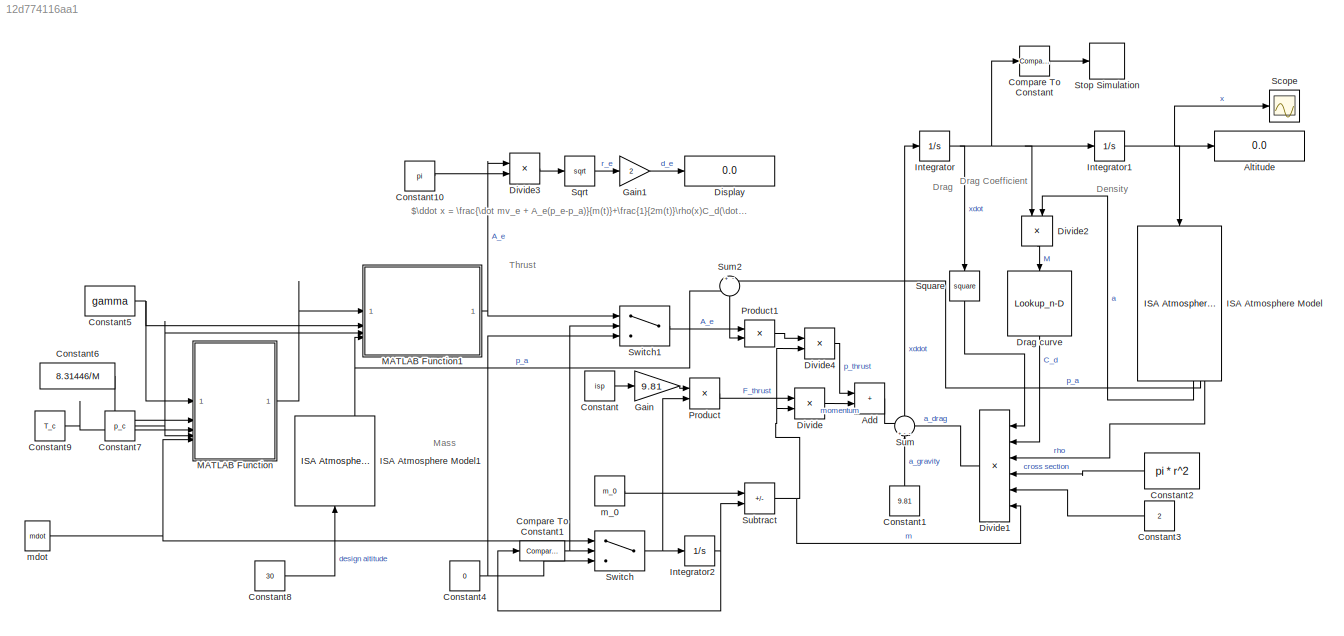
MODEL slx_12d774116aa1
KIND model
CONFIG AbsTol = auto
CONFIG EnableMultiTasking = off
CONFIG FixedStep = auto
CONFIG MaxStep = auto
CONFIG MinStep = auto
CONFIG RelTol = 1e-3
CONFIG SampleTimeConstraint = Unconstrained
CONFIG SolverName = VariableStepAuto
CONFIG StartTime = 0.0
CONFIG StopTime = 50
BLOCK [Sum] Add
  IconShape = rectangular
BLOCK [Display] Altitude
  Decimation = 1
BLOCK [Reference] Compare To Constant  REF=simulink/Logic and Bit
Operations/Compare
To Constant
  SourceBlock = simulink/Logic and Bit\nOperations/Compare\nTo Constant
  SourceType = Compare To Constant
BLOCK [Reference] Compare To Constant1  REF=simulink/Logic and Bit
Operations/Compare
To Constant
  SourceBlock = simulink/Logic and Bit\nOperations/Compare\nTo Constant
  SourceType = Compare To Constant
BLOCK [Constant] Constant
  Value = isp
BLOCK [Constant] Constant1
  NameLocation = right
  Value = 9.81
BLOCK [Constant] Constant10
  Value = pi
BLOCK [Constant] Constant2
  NameLocation = top
  Value = pi * r^2
BLOCK [Constant] Constant3
  NameLocation = top
  Value = 2
BLOCK [Constant] Constant4
  Value = 0
BLOCK [Constant] Constant5
  Value = gamma
BLOCK [Constant] Constant6
  Value = 8.31446/M
BLOCK [Constant] Constant7
  Value = p_c
BLOCK [Constant] Constant8
  Value = 30
BLOCK [Constant] Constant9
  Value = T_c
BLOCK [Display] Display
  Decimation = 1
BLOCK [Product] Divide
  Inputs = */
BLOCK [Product] Divide1
  Inputs = ****//
  NameLocation = top
BLOCK [Product] Divide2
  Inputs = */
  NameLocation = left
BLOCK [Product] Divide3
  Inputs = */
BLOCK [Product] Divide4
  Inputs = */
BLOCK [Lookup_n-D] Drag curve
  BreakpointsForDimension1 = [0.2 0.4 0.6 0.8 0.9 0.975 1.0 1.025 1.05 1.1 1.2 1.4 1.6 1.8 2.0 2.2 2.4 2.6 2.8 3.0]
  InputPortMap = u0
  InternalRulePriority = Speed
  InterpMethod = Linear Lagrange
  NumberOfTableDimensions = 1
  RndMeth = Simplest
  Table = [0.52 0.534 0.559 0.592 0.612 0.628 0.649 0.651 0.655 0.648 0.629 0.590 0.549 0.508 0.472 0.442 0.414 0.390 0.371 0.355]
BLOCK [Gain] Gain
  Gain = 9.81
BLOCK [Gain] Gain1
  Gain = 2
BLOCK [Reference] ISA Atmosphere Model  REF=aerolibatmos2/ISA Atmosphere Model
  NameLocation = left
  SourceBlock = aerolibatmos2/ISA Atmosphere Model
  SourceType = International Standard Atmosphere Model
BLOCK [Reference] ISA Atmosphere Model1  REF=aerolibatmos2/ISA Atmosphere Model
  NameLocation = right
  SourceBlock = aerolibatmos2/ISA Atmosphere Model
  SourceType = International Standard Atmosphere Model
BLOCK [Integrator] Integrator
BLOCK [Integrator] Integrator1
BLOCK [Integrator] Integrator2
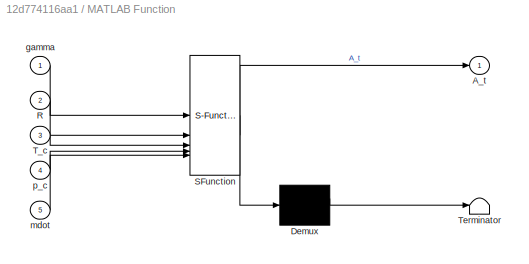
BLOCK [SubSystem] MATLAB Function
  ErrorFcn = Stateflow.Translate.translate
  PermitHierarchicalResolution = ExplicitOnly
  SFBlockType = MATLAB Function
  TreatAsAtomicUnit = on
BLOCK [Demux] MATLAB Function/ Demux 
  Outputs = 1
BLOCK [S-Function] MATLAB Function/ SFunction 
  EnableBusSupport = off
  FunctionName = sf_sfun
  PortCounts = [5 2]
  SFcnIsStateOwnerBlock = off
  SFunctionDeploymentMode = off
  Tag = Stateflow S-Function 2
BLOCK [Terminator] MATLAB Function/ Terminator 
BLOCK [Outport] MATLAB Function/A_t
BLOCK [Inport] MATLAB Function/R
  Port = 2
BLOCK [Inport] MATLAB Function/T_c
  Port = 3
BLOCK [Inport] MATLAB Function/gamma
BLOCK [Inport] MATLAB Function/mdot
  Port = 5
BLOCK [Inport] MATLAB Function/p_c
  Port = 4
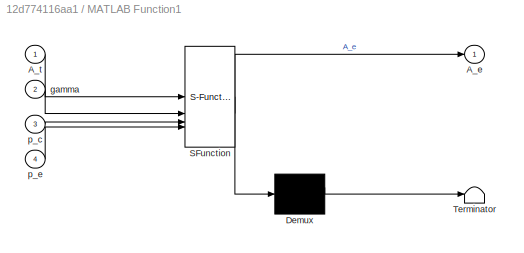
BLOCK [SubSystem] MATLAB Function1
  ErrorFcn = Stateflow.Translate.translate
  PermitHierarchicalResolution = ExplicitOnly
  SFBlockType = MATLAB Function
  TreatAsAtomicUnit = on
BLOCK [Demux] MATLAB Function1/ Demux 
  Outputs = 1
BLOCK [S-Function] MATLAB Function1/ SFunction 
  EnableBusSupport = off
  FunctionName = sf_sfun
  PortCounts = [4 2]
  SFcnIsStateOwnerBlock = off
  SFunctionDeploymentMode = off
  Tag = Stateflow S-Function 1
BLOCK [Terminator] MATLAB Function1/ Terminator 
BLOCK [Outport] MATLAB Function1/A_e
BLOCK [Inport] MATLAB Function1/A_t
BLOCK [Inport] MATLAB Function1/gamma
  Port = 2
BLOCK [Inport] MATLAB Function1/p_c
  Port = 3
BLOCK [Inport] MATLAB Function1/p_e
  Port = 4
BLOCK [Product] Product
BLOCK [Product] Product1
BLOCK [Scope] Scope
  ActiveDisplayYMaximum = 1
  ActiveDisplayYMinimum = -1
  Floating = off
  GraphicalSettings = {"Style":{"BackgroundColor":[0.12941176470588237,0.12941176470588237,0.12941176470588237],"AxesColor":[0.07058823529411765,0.07058823529411765,0.07058823529411765],"LabelsColor":[0.8509803921568627,0.8509803921568627,0.8509803921568627],"PreserveColors":false,"Visible":[true],"LineStyle":["-"],"LineWidth":[1.5],"BarWidth":[0.9],"LineColor":["auto"],"LineFaceAlpha":[1],"LineEdgeAlpha":[1],"Marker":...<+1944ch>
  MultipleDisplayCache = [{"MaxYLimMag":1,"MaxYLimReal":1,"MinYLimMag":0,"MinYLimReal":-1,"PlotAsMagnitudePhase":false,"ShowGrid":true,"ShowLegend":false,"Title":"%<SignalLabel>","YLabel":""}]
  NumInputPorts = 1
  ScopeFrameLocation = window
  WasSavedAsWebScope = on
  WindowPosition = [680.000000,330.000000,560.000000,420.000000,]
BLOCK [Sqrt] Sqrt
BLOCK [Math] Square
  NameLocation = left
  Operator = square
BLOCK [Stop] Stop Simulation
BLOCK [Sum] Subtract
  IconShape = rectangular
  Inputs = +-
BLOCK [Sum] Sum
  Inputs = +--
  NameLocation = right
BLOCK [Sum] Sum2
  Inputs = +-
  NameLocation = left
BLOCK [Switch] Switch
  Criteria = u2 ~= 0
  InputSameDT = off
  SaturateOnIntegerOverflow = off
  Threshold = m_fuel
BLOCK [Switch] Switch1
  Criteria = u2 ~= 0
  InputSameDT = off
  SaturateOnIntegerOverflow = off
  Threshold = m_fuel
BLOCK [Constant] m_0
  Value = m_0
BLOCK [Constant] mdot
  Value = mdot
ANNOTATION (root): $\ddot x = \frac{\dot mv_e + A_e(p_e-p_a)}{m(t)}+\frac{1}{2m(t)}\rho(x)C_d(\dot x, x)A\dot x^2+g$
ANNOTATION (root): Density
ANNOTATION (root): Drag
ANNOTATION (root): Drag Coefficient
ANNOTATION (root): Mass
ANNOTATION (root): Thrust
LINE Add:1 -> Sum:1
NET Compare To Constant1:1 -> Switch1:2, Switch:2
LINE Compare To Constant:1 -> Stop Simulation:1
LINE Constant10:1 -> Divide3:2
LINE Constant1:1 -> Sum:2
LINE Constant2:1 -> Divide1:4
LINE Constant3:1 -> Divide1:5
NET Constant4:1 -> Switch1:3, Switch:3
NET Constant5:1 -> MATLAB Function1:2, MATLAB Function:1
LINE Constant6:1 -> MATLAB Function:2
NET Constant7:1 -> MATLAB Function1:3, MATLAB Function:4
LINE Constant8:1 -> ISA Atmosphere Model1:1
LINE Constant9:1 -> MATLAB Function:3
LINE Constant:1 -> Gain:1
LINE Divide1:1 -> Sum:3
LINE Divide2:1 -> Drag curve:1
LINE Divide3:1 -> Sqrt:1
LINE Divide4:1 -> Add:1
LINE Divide:1 -> Add:2
LINE Drag curve:1 -> Divide1:2
LINE Gain1:1 -> Display:1
LINE Gain:1 -> Product:1
NET ISA Atmosphere Model1:3 -> MATLAB Function1:4, Sum2:1
LINE ISA Atmosphere Model:2 -> Divide2:2
LINE ISA Atmosphere Model:3 -> Sum2:2
LINE ISA Atmosphere Model:4 -> Divide1:3
NET Integrator1:1 -> Altitude:1, ISA Atmosphere Model:1, Scope:1
NET Integrator2:1 -> Compare To Constant1:1, Subtract:2
NET Integrator:1 -> Compare To Constant:1, Divide2:1, Integrator1:1, Square:1
NET MATLAB Function1:1 -> Divide3:1, Switch1:1
LINE MATLAB Function:1 -> MATLAB Function1:1
LINE Product1:1 -> Divide4:1
LINE Product:1 -> Divide:1
LINE Sqrt:1 -> Gain1:1
LINE Square:1 -> Divide1:1
NET Subtract:1 -> Divide1:6, Divide4:2, Divide:2
LINE Sum2:1 -> Product1:2
LINE Sum:1 -> Integrator:1
LINE Switch1:1 -> Product1:1
NET Switch:1 -> Integrator2:1, Product:2
LINE m_0:1 -> Subtract:1
NET mdot:1 -> MATLAB Function:5, Switch:1
note: NET lines group one-source signal fan-out (src -> all destinations, sorted); 1:1 wires keep LINE
CHART MATLAB Function1 states=1 transitions=1
  STATE_LABEL 'eML_blk_kernel()'
  STATE_LABEL 'SCRIPT:\nfunction A_e = isentropicExit(A_t, gamma, p_c, p_e)\nA_e = A_t * (2/(gamma+1))^(1/(gamma-1)) * (p_c/p_e)^(1/gamma)...\n    * sqrt(((gamma-1)/(gamma+1)*(1-(p_e/p_c)^((gamma-1)/gamma)))^-1);'
CHART MATLAB Function states=1 transitions=1
  STATE_LABEL 'eML_blk_kernel()'
  STATE_LABEL 'SCRIPT:\nfunction A_t = isentropicThroat(gamma, R, T_c, p_c, mdot)\nA_t = mdot * sqrt(gamma*R*T_c) / p_c / gamma / sqrt((2/(gamma+1))^((gamma+1)/(gamma-1)));\n'
CHART  states=0 transitions=0
CHART  states=0 transitions=0
